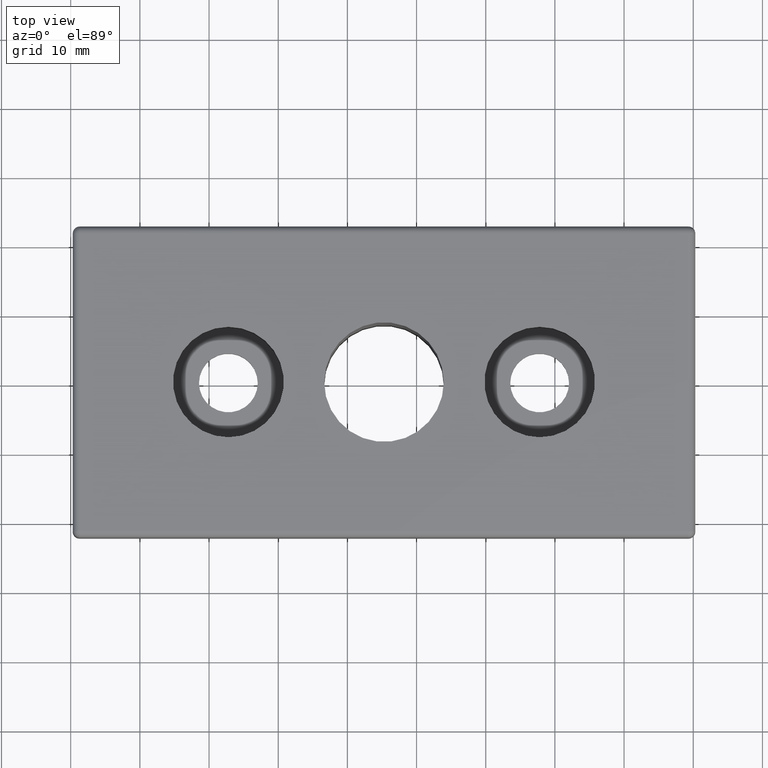
[diagram: clean part render]
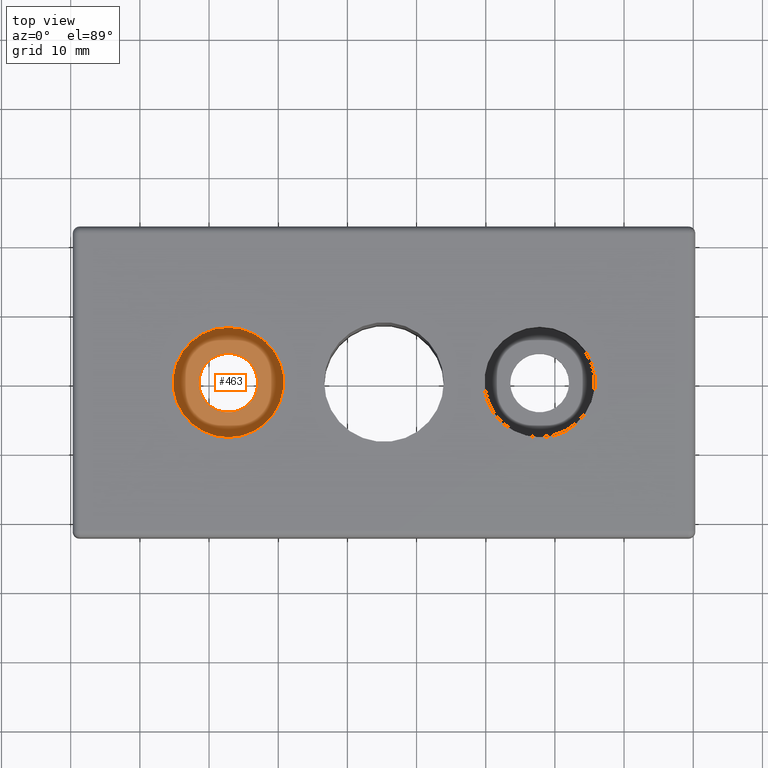
[diagram: same view with one face highlighted and labeled with its STEP entity id]
A machine part, top view. The second image highlights one B-rep face of the part: STEP entity #463.
In plain terms, the highlighted planar face has unit normal (0, 0, -1).
Its self-contained STEP definition (entity closure, byte-faithful):
#79=PLANE('',#512);
#94=FACE_BOUND('',#158,.T.);
#109=FACE_OUTER_BOUND('',#157,.T.);
#157=EDGE_LOOP('',(#357));
#158=EDGE_LOOP('',(#358));
#190=CIRCLE('',#502,8.);
#192=CIRCLE('',#505,4.25);
#226=VERTEX_POINT('',#751);
#228=VERTEX_POINT('',#756);
#262=EDGE_CURVE('',#226,#226,#190,.T.);
#264=EDGE_CURVE('',#228,#228,#192,.T.);
#357=ORIENTED_EDGE('',*,*,#262,.T.);
#358=ORIENTED_EDGE('',*,*,#264,.F.);
#463=ADVANCED_FACE('',(#109,#94),#79,.F.);
#502=AXIS2_PLACEMENT_3D('',#752,#590,#591);
#505=AXIS2_PLACEMENT_3D('',#757,#596,#597);
#512=AXIS2_PLACEMENT_3D('',#812,#634,#635);
#590=DIRECTION('center_axis',(0.,0.,1.));
#591=DIRECTION('ref_axis',(0.,-1.,0.));
#596=DIRECTION('center_axis',(0.,0.,1.));
#597=DIRECTION('ref_axis',(-1.,0.,0.));
#634=DIRECTION('center_axis',(0.,0.,-1.));
#635=DIRECTION('ref_axis',(-1.,0.,0.));
#751=CARTESIAN_POINT('',(-67.2071067811865,-8.,2.70710678118655));
#752=CARTESIAN_POINT('Origin',(-67.2071067811865,0.,2.70710678118655));
#756=CARTESIAN_POINT('',(-62.9571067811865,0.,2.70710678118655));
#757=CARTESIAN_POINT('Origin',(-67.2071067811865,0.,2.70710678118655));
#812=CARTESIAN_POINT('Origin',(-58.4071067811865,-8.8,2.70710678118655));